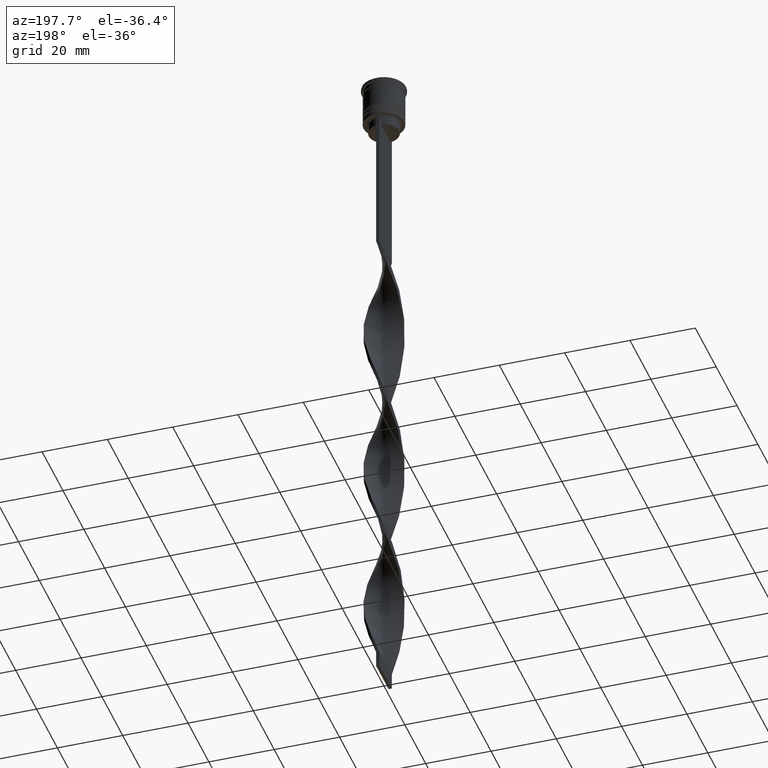
[diagram: clean part render]
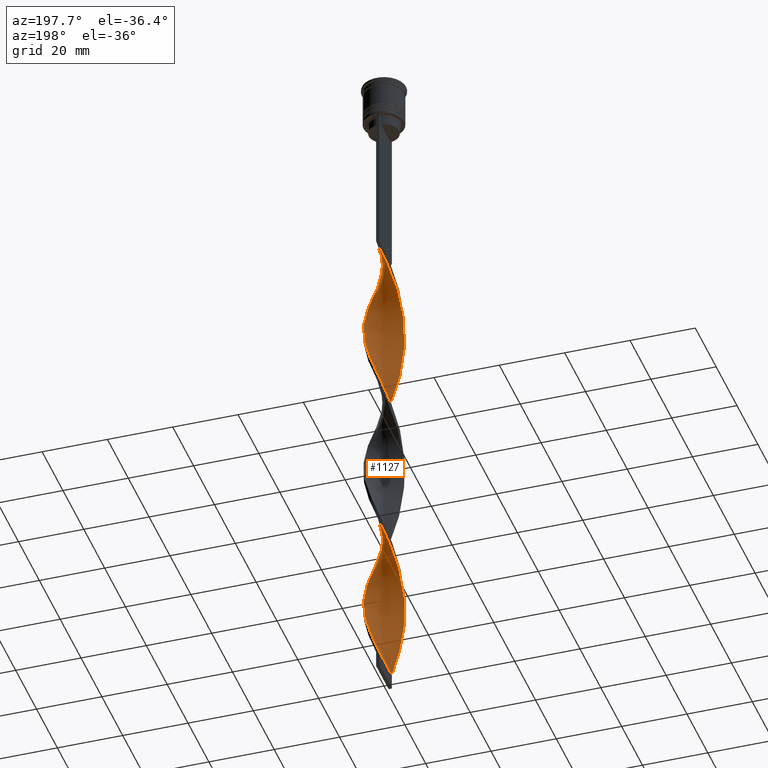
[diagram: same view with one face highlighted and labeled with its STEP entity id]
A machine part, auxiliary view. The second image highlights one B-rep face of the part: STEP entity #1127.
In plain terms, the highlighted face is a freeform B-spline surface patch.
Its self-contained STEP definition (entity closure, byte-faithful):
#15 = CARTESIAN_POINT ( 'NONE',  ( 0.6110105570574709821, 5.989713357011695827, -204.5784313725490335 ) ) ;
#19 = EDGE_CURVE ( 'NONE', #1454, #689, #756, .T. ) ;
#31 = CARTESIAN_POINT ( 'NONE',  ( 3.583701545128941124, -4.838086732939006041, -166.5980392156862706 ) ) ;
#36 = CARTESIAN_POINT ( 'NONE',  ( -6.020539237501857599, 0.05574306863229388370, -131.5392156862745310 ) ) ;
#38 = CARTESIAN_POINT ( 'NONE',  ( -6.025704593494047856, 0.5021420494578378024, -83.33333333333332860 ) ) ;
#39 = CARTESIAN_POINT ( 'NONE',  ( 0.5000000000000002220, 6.000000000000000888, -58.50000000000000000 ) ) ;
#52 = CARTESIAN_POINT ( 'NONE',  ( 5.830837162583066835, 1.600812440396822023, -185.5882352941176237 ) ) ;
#59 = CARTESIAN_POINT ( 'NONE',  ( -1.055981877452179196, 5.953668176878984752, -109.6274509803921404 ) ) ;
#61 = CARTESIAN_POINT ( 'NONE',  ( 2.633686111825096710, 5.414212543332559413, -151.9901960784313530 ) ) ;
#74 = CARTESIAN_POINT ( 'NONE',  ( -3.135386787619624194, 5.170165585153850607, -115.4705882352941018 ) ) ;
#76 = CARTESIAN_POINT ( 'NONE',  ( -1.701213882420739676, 5.775454209519711668, -163.6764705882352757 ) ) ;
#91 = CARTESIAN_POINT ( 'NONE',  ( 4.858813575065529022, 3.599054477032530563, -92.09803921568628482 ) ) ;
#93 = CARTESIAN_POINT ( 'NONE',  ( -5.907785354072956352, -1.161065118846087874, -87.71568627450979250 ) ) ;
#116 = CARTESIAN_POINT ( 'NONE',  ( 5.437407565418680200, 2.644969083640992036, -89.17647058823528994 ) ) ;
#133 = CARTESIAN_POINT ( 'NONE',  ( 4.032016302638260719, -4.506007880724164139, -168.0588235294117680 ) ) ;
#156 = CARTESIAN_POINT ( 'NONE',  ( 5.593848926018644363, 2.226848488981700402, -140.3039215686274588 ) ) ;
#167 = CARTESIAN_POINT ( 'NONE',  ( -2.131985436030568781, -5.658259501511266443, -203.1176470588235361 ) ) ;
#181 = CARTESIAN_POINT ( 'NONE',  ( 5.387501025401045140, 2.745194926993649087, -141.7647058823529562 ) ) ;
#190 = CARTESIAN_POINT ( 'NONE',  ( -3.583701545128942456, -4.838086732939007817, -198.7352941176470722 ) ) ;
#198 = CARTESIAN_POINT ( 'NONE',  ( 5.089420681871067664, 3.216799204635417464, -143.2254901960784537 ) ) ;
#206 = CARTESIAN_POINT ( 'NONE',  ( 5.830837162583066835, 1.600812440396822023, -86.25490196078432348 ) ) ;
#217 = CARTESIAN_POINT ( 'NONE',  ( 3.135386787619624638, 5.170165585153852383, -150.5294117647058840 ) ) ;
#224 = CARTESIAN_POINT ( 'NONE',  ( 0.6110105570574709821, 5.989713357011695827, -105.2450980392156765 ) ) ;
#238 = CARTESIAN_POINT ( 'NONE',  ( 4.486786045491808927, 4.014816431915656736, -192.8921568627450824 ) ) ;
#245 = CARTESIAN_POINT ( 'NONE',  ( 5.634122364000871741, 2.122890762018907029, -87.71568627450979250 ) ) ;
#246 = CARTESIAN_POINT ( 'NONE',  ( -0.4999999999999994449, 5.999999999999999112, -207.5000000000000000 ) ) ;
#252 = CARTESIAN_POINT ( 'NONE',  ( -4.858813575065530799, 3.599054477032530563, -74.56862745098038658 ) ) ;
#254 = CARTESIAN_POINT ( 'NONE',  ( 4.114758515918087056, 4.430578386798786461, -194.3529411764705799 ) ) ;
#261 = CARTESIAN_POINT ( 'NONE',  ( 2.236388528178716584, 5.617813528137046042, -200.1960784313725981 ) ) ;
#268 = CARTESIAN_POINT ( 'NONE',  ( -2.633686111825095821, -5.414212543332559413, -201.6568627450980387 ) ) ;
#276 = CARTESIAN_POINT ( 'NONE',  ( -3.672669403269011923, -4.770901325147233862, -146.1470588235294201 ) ) ;
#301 = CARTESIAN_POINT ( 'NONE',  ( 1.166039236662764322, 5.933094890902375518, -203.1176470588235361 ) ) ;
#310 = CARTESIAN_POINT ( 'NONE',  ( 0.05598187745217741290, 6.046331823121016136, -206.0392156862745026 ) ) ;
#316 = CARTESIAN_POINT ( 'NONE',  ( -1.166039236662764988, -5.933094890902374630, -153.4509803921568789 ) ) ;
#322 = CARTESIAN_POINT ( 'NONE',  ( 4.032016302638260719, -4.506007880724164139, -68.72549019607842524 ) ) ;
#324 = CARTESIAN_POINT ( 'NONE',  ( 4.791340338341086635, 3.688403482277191614, -144.6862745098039227 ) ) ;
#331 = CARTESIAN_POINT ( 'NONE',  ( 2.131985436030567005, -5.658259501511264666, -162.2156862745098351 ) ) ;
#336 = CARTESIAN_POINT ( 'NONE',  ( 4.486786045491808927, 4.014816431915656736, -93.55882352941176805 ) ) ;
#338 = CARTESIAN_POINT ( 'NONE',  ( 6.025704593494047856, -0.5021420494578385796, -133.0000000000000000 ) ) ;
#359 = CARTESIAN_POINT ( 'NONE',  ( 1.701213882420739232, 5.775454209519709892, -102.3235294117646959 ) ) ;
#361 = CARTESIAN_POINT ( 'NONE',  ( -5.800196826636243586, -1.708502050969748609, -89.17647058823527573 ) ) ;
#366 = CARTESIAN_POINT ( 'NONE',  ( -1.166039236662763434, 5.933094890902378182, -62.88235294117647101 ) ) ;
#378 = CARTESIAN_POINT ( 'NONE',  ( -4.411678320489672345, 4.097205681500675212, -119.8529411764705799 ) ) ;
#380 = CARTESIAN_POINT ( 'NONE',  ( 6.015373881509670895, 0.6136281867224275821, -135.9215686274509665 ) ) ;
#385 = CARTESIAN_POINT ( 'NONE',  ( -3.672669403269013699, 4.770901325147233862, -70.18627450980390847 ) ) ;
#396 = CARTESIAN_POINT ( 'NONE',  ( 3.583701545128941124, -4.838086732939006041, -67.26470588235292780 ) ) ;
#418 = CARTESIAN_POINT ( 'NONE',  ( 5.593848926018642587, -2.226848488981698626, -175.3627450980391984 ) ) ;
#426 = CARTESIAN_POINT ( 'NONE',  ( -0.6110105570574712042, 5.989713357011696715, -61.42156862745097357 ) ) ;
#442 = CARTESIAN_POINT ( 'NONE',  ( -5.800196826636243586, -1.708502050969748609, -188.5098039215686185 ) ) ;
#449 = CARTESIAN_POINT ( 'NONE',  ( 0.05598187745217893252, -6.046331823121015248, -109.6274509803921546 ) ) ;
#459 = CARTESIAN_POINT ( 'NONE',  ( 5.800196826636243586, 1.708502050969746833, -138.8431372549019329 ) ) ;
#469 = CARTESIAN_POINT ( 'NONE',  ( 6.015373881509669118, -0.6136281867224262498, -80.41176470588234793 ) ) ;
#484 = CARTESIAN_POINT ( 'NONE',  ( 5.830837162583069500, -1.600812440396820246, -130.0784313725490335 ) ) ;
#494 = CARTESIAN_POINT ( 'NONE',  ( -6.025704593494047856, 0.5021420494578378024, -182.6666666666666572 ) ) ;
#495 = CARTESIAN_POINT ( 'NONE',  ( -0.5000000000000000000, 1.999999999999999112, -207.5000000000000000 ) ) ;
#502 = CARTESIAN_POINT ( 'NONE',  ( -1.701213882420739676, 5.775454209519711668, -163.6764705882352757 ) ) ;
#510 = CARTESIAN_POINT ( 'NONE',  ( 5.800196826636241809, -1.708502050969748609, -77.49019607843138147 ) ) ;
#519 = CARTESIAN_POINT ( 'NONE',  ( -6.015373881509671783, -0.6136281867224271380, -185.5882352941176237 ) ) ;
#526 = CARTESIAN_POINT ( 'NONE',  ( -1.055981877452178086, -5.953668176878989193, -206.0392156862745026 ) ) ;
#539 = CARTESIAN_POINT ( 'NONE',  ( 2.633686111825095377, -5.414212543332557637, -64.34313725490196134 ) ) ;
#552 = CARTESIAN_POINT ( 'NONE',  ( -2.633686111825096265, 5.414212543332556749, -114.0098039215686185 ) ) ;
#561 = CARTESIAN_POINT ( 'NONE',  ( 2.733484409399326687, 5.364518895816362765, -198.7352941176470722 ) ) ;
#569 = CARTESIAN_POINT ( 'NONE',  ( 4.486786045491808927, 4.014816431915656736, -192.8921568627450824 ) ) ;
#576 = CARTESIAN_POINT ( 'NONE',  ( -0.5000000000000009992, -6.000000000000000888, -207.5000000000000000 ) ) ;
#585 = CARTESIAN_POINT ( 'NONE',  ( 1.055981877452178530, -5.953668176878985641, -159.2941176470588118 ) ) ;
#608 = CARTESIAN_POINT ( 'NONE',  ( -5.148110570242102391, -3.122011780336762410, -140.3039215686274588 ) ) ;
#616 = CARTESIAN_POINT ( 'NONE',  ( 5.593848926018642587, -2.226848488981698626, -76.02941176470586981 ) ) ;
#617 = CARTESIAN_POINT ( 'NONE',  ( -5.634122364000873517, 2.122890762018907029, -78.95098039215686470 ) ) ;
#624 = CARTESIAN_POINT ( 'NONE',  ( -6.025704593494046080, -0.5021420494578363591, -133.0000000000000000 ) ) ;
#630 = CARTESIAN_POINT ( 'NONE',  ( 5.907785354072954576, -1.161065118846086541, -78.95098039215686470 ) ) ;
#632 = CARTESIAN_POINT ( 'NONE',  ( 3.672669403269013699, -4.770901325147233862, -119.8529411764705799 ) ) ;
#637 = CARTESIAN_POINT ( 'NONE',  ( -2.633686111825095821, -5.414212543332559413, -102.3235294117646959 ) ) ;
#640 = CARTESIAN_POINT ( 'NONE',  ( -5.387501025401043364, 2.745194926993649975, -124.2352941176470580 ) ) ;
#646 = CARTESIAN_POINT ( 'NONE',  ( -4.114758515918085280, -4.430578386798788237, -144.6862745098039227 ) ) ;
#648 = CARTESIAN_POINT ( 'NONE',  ( -0.05598187745217849537, 6.046331823121015248, -159.2941176470588118 ) ) ;
#657 = CARTESIAN_POINT ( 'NONE',  ( -2.733484409399328019, 5.364518895816364541, -67.26470588235292780 ) ) ;
#670 = CARTESIAN_POINT ( 'NONE',  ( -5.907785354072954576, 1.161065118846088762, -128.6176470588235361 ) ) ;
#672 = CARTESIAN_POINT ( 'NONE',  ( 3.230580290619939010, -5.111224263495682152, -118.3921568627451109 ) ) ;
#676 = EDGE_CURVE ( 'NONE', #783, #689, #3023, .T. ) ;
#678 = CARTESIAN_POINT ( 'NONE',  ( -1.593983656741373212, -5.805963839195126042, -105.2450980392156765 ) ) ;
#685 = CARTESIAN_POINT ( 'NONE',  ( -5.634122364000871741, -2.122890762018906141, -137.3823529411764639 ) ) ;
#687 = CARTESIAN_POINT ( 'NONE',  ( -6.015373881509670895, -0.6136281867224269160, -86.25490196078432348 ) ) ;
#689 = VERTEX_POINT ( 'NONE', #1162 ) ;
#702 = CARTESIAN_POINT ( 'NONE',  ( 5.089420681871065000, -3.216799204635418352, -172.4411764705882035 ) ) ;
#708 = CARTESIAN_POINT ( 'NONE',  ( -6.020539237501859375, -0.05574306863229388370, -84.79411764705882604 ) ) ;
#717 = VECTOR ( 'NONE', #3460, 1000.000000000000000 ) ;
#731 = CARTESIAN_POINT ( 'NONE',  ( -6.020539237501859375, -0.05574306863229388370, -184.1274509803921546 ) ) ;
#745 = CARTESIAN_POINT ( 'NONE',  ( 1.593983656741371657, 5.805963839195126930, -154.9117647058823479 ) ) ;
#753 = CARTESIAN_POINT ( 'NONE',  ( -4.858813575065530799, 3.599054477032530563, -173.9019607843137294 ) ) ;
#756 = B_SPLINE_CURVE_WITH_KNOTS ( 'NONE', 3,
 ( #860, #2900, #495, #246 ),
 .UNSPECIFIED., .F., .F.,
 ( 4, 4 ),
 ( 0.000000000000000000, 1.000000000000000000 ),
 .UNSPECIFIED. ) ;
#765 = CARTESIAN_POINT ( 'NONE',  ( 4.114758515918088833, -4.430578386798787349, -121.3137254901960773 ) ) ;
#774 = CARTESIAN_POINT ( 'NONE',  ( 5.148110570242104167, 3.122011780336760189, -90.63725490196078738 ) ) ;
#783 = VERTEX_POINT ( 'NONE', #3224 ) ;
#787 = CARTESIAN_POINT ( 'NONE',  ( 6.020539237501859375, 0.05574306863229182285, -134.4607843137254974 ) ) ;
#795 = CARTESIAN_POINT ( 'NONE',  ( 2.236388528178716584, 5.617813528137046042, -100.8627450980392126 ) ) ;
#805 = CARTESIAN_POINT ( 'NONE',  ( -2.236388528178716584, 5.617813528137047818, -65.80392156862747299 ) ) ;
#807 = CARTESIAN_POINT ( 'NONE',  ( 3.583701545128945121, 4.838086732939006041, -149.0686274509803866 ) ) ;
#814 = CARTESIAN_POINT ( 'NONE',  ( -4.791340338341087524, -3.688403482277189838, -194.3529411764705799 ) ) ;
#824 = CARTESIAN_POINT ( 'NONE',  ( 6.015373881509670007, -0.6136281867224262498, -179.7450980392157476 ) ) ;
#832 = CARTESIAN_POINT ( 'NONE',  ( 0.05598187745217741984, 6.046331823121015248, -106.7058823529412024 ) ) ;
#851 = CARTESIAN_POINT ( 'NONE',  ( 5.830837162583065947, 1.600812440396822023, -185.5882352941176237 ) ) ;
#859 = CARTESIAN_POINT ( 'NONE',  ( -2.236388528178714807, -5.617813528137046930, -150.5294117647058840 ) ) ;
#860 = CARTESIAN_POINT ( 'NONE',  ( -0.5000000000000009992, -6.000000000000000888, -207.5000000000000000 ) ) ;
#876 = CARTESIAN_POINT ( 'NONE',  ( -4.791340338341087524, 3.688403482277188061, -121.3137254901960631 ) ) ;
#883 = CARTESIAN_POINT ( 'NONE',  ( 0.5000000000000002220, 6.000000000000000888, -58.50000000000000000 ) ) ;
#885 = CARTESIAN_POINT ( 'NONE',  ( 4.858813575065529022, 3.599054477032530563, -191.4313725490196134 ) ) ;
#895 = CARTESIAN_POINT ( 'NONE',  ( 0.05598187745217741984, 6.046331823121015248, -206.0392156862745026 ) ) ;
#902 = CARTESIAN_POINT ( 'NONE',  ( 5.387501025401045140, 2.745194926993649087, -141.7647058823529562 ) ) ;
#906 = CARTESIAN_POINT ( 'NONE',  ( 5.928270878038555125, 1.051477244927328636, -184.1274509803921546 ) ) ;
#916 = CARTESIAN_POINT ( 'NONE',  ( 0.5000000000000002220, -5.999999999999999112, -157.8333333333333144 ) ) ;
#920 = CARTESIAN_POINT ( 'NONE',  ( -4.486786045491809816, -4.014816431915656736, -143.2254901960784537 ) ) ;
#922 = CARTESIAN_POINT ( 'NONE',  ( -5.089420681871066776, -3.216799204635418796, -93.55882352941176805 ) ) ;
#927 = CARTESIAN_POINT ( 'NONE',  ( -4.858813575065530799, 3.599054477032530563, -74.56862745098038658 ) ) ;
#931 = CARTESIAN_POINT ( 'NONE',  ( 5.593848926018642587, -2.226848488981698626, -175.3627450980391984 ) ) ;
#938 = CARTESIAN_POINT ( 'NONE',  ( -5.800196826636241809, 1.708502050969748165, -127.1568627450980244 ) ) ;
#940 = CARTESIAN_POINT ( 'NONE',  ( 2.131985436030568781, 5.658259501511265555, -153.4509803921568789 ) ) ;
#956 = CARTESIAN_POINT ( 'NONE',  ( 4.791340338341086635, -3.688403482277188949, -71.64705882352942012 ) ) ;
#958 = CARTESIAN_POINT ( 'NONE',  ( 1.701213882420741008, -5.775454209519712556, -114.0098039215686185 ) ) ;
#965 = CARTESIAN_POINT ( 'NONE',  ( -3.135386787619625970, -5.170165585153851495, -100.8627450980392126 ) ) ;
#977 = CARTESIAN_POINT ( 'NONE',  ( 3.672669403269014143, 4.770901325147232086, -96.48039215686274872 ) ) ;
#979 = CARTESIAN_POINT ( 'NONE',  ( -4.791340338341087524, -3.688403482277189838, -95.01960784313725128 ) ) ;
#994 = CARTESIAN_POINT ( 'NONE',  ( -0.05598187745217816924, -6.046331823121016136, -156.3725490196078454 ) ) ;
#1000 = CARTESIAN_POINT ( 'NONE',  ( -5.830837162583067723, 1.600812440396822023, -80.41176470588234793 ) ) ;
#1010 = CARTESIAN_POINT ( 'NONE',  ( 5.387501025401043364, -2.745194926993648199, -173.9019607843137294 ) ) ;
#1018 = CARTESIAN_POINT ( 'NONE',  ( -4.791340338341087524, -3.688403482277189838, -194.3529411764705799 ) ) ;
#1043 = CARTESIAN_POINT ( 'NONE',  ( 4.032016302638262495, 4.506007880724165027, -147.6078431372548891 ) ) ;
#1050 = ORIENTED_EDGE ( 'NONE', *, *, #2923, .F. ) ;
#1052 = CARTESIAN_POINT ( 'NONE',  ( -3.135386787619626414, -5.170165585153851495, -200.1960784313725981 ) ) ;
#1062 = CARTESIAN_POINT ( 'NONE',  ( -3.672669403269013699, 4.770901325147233862, -169.5196078431372371 ) ) ;
#1071 = CARTESIAN_POINT ( 'NONE',  ( 5.907785354072954576, -1.161065118846086541, -78.95098039215686470 ) ) ;
#1081 = CARTESIAN_POINT ( 'NONE',  ( 4.858813575065529911, -3.599054477032532340, -124.2352941176470580 ) ) ;
#1089 = CARTESIAN_POINT ( 'NONE',  ( 4.486786045491808927, 4.014816431915656736, -93.55882352941176805 ) ) ;
#1102 = CARTESIAN_POINT ( 'NONE',  ( 0.5000000000000002220, 6.000000000000000888, -157.8333333333333144 ) ) ;
#1111 = CARTESIAN_POINT ( 'NONE',  ( -1.055981877452178974, 5.953668176878985641, -109.6274509803921546 ) ) ;
#1127 = ADVANCED_FACE ( 'NONE', ( #2324 ), #3790, .T. ) ;
#1132 = CARTESIAN_POINT ( 'NONE',  ( 5.089420681871065000, -3.216799204635418352, -73.10784313725488914 ) ) ;
#1148 = CARTESIAN_POINT ( 'NONE',  ( 3.135386787619625082, -5.170165585153850607, -165.1372549019608016 ) ) ;
#1162 = CARTESIAN_POINT ( 'NONE',  ( -0.4999999999999994449, 5.999999999999999112, -207.5000000000000000 ) ) ;
#1169 = CARTESIAN_POINT ( 'NONE',  ( 0.5000000000000002220, -6.000000000000000000, -58.50000000000000000 ) ) ;
#1170 = CARTESIAN_POINT ( 'NONE',  ( 1.593983656741372767, -5.805963839195126042, -160.7549019607842808 ) ) ;
#1189 = CARTESIAN_POINT ( 'NONE',  ( 5.437407565418679312, 2.644969083640992036, -188.5098039215686185 ) ) ;
#1197 = CARTESIAN_POINT ( 'NONE',  ( 5.928270878038556901, -1.051477244927329080, -131.5392156862745310 ) ) ;
#1200 = CARTESIAN_POINT ( 'NONE',  ( -3.135386787619625970, -5.170165585153851495, -200.1960784313725696 ) ) ;
#1201 = CARTESIAN_POINT ( 'NONE',  ( 5.907785354072954576, -1.161065118846086541, -178.2843137254901933 ) ) ;
#1207 = CARTESIAN_POINT ( 'NONE',  ( -4.114758515918085280, -4.430578386798788237, -144.6862745098039227 ) ) ;
#1213 = CARTESIAN_POINT ( 'NONE',  ( 5.387501025401043364, -2.745194926993648199, -74.56862745098038658 ) ) ;
#1216 = CARTESIAN_POINT ( 'NONE',  ( 3.135386787619624638, 5.170165585153852383, -150.5294117647058840 ) ) ;
#1232 = CARTESIAN_POINT ( 'NONE',  ( 6.015373881509669118, -0.6136281867224262498, -179.7450980392157192 ) ) ;
#1237 = CARTESIAN_POINT ( 'NONE',  ( 5.634122364000871741, 2.122890762018907029, -87.71568627450979250 ) ) ;
#1239 = CARTESIAN_POINT ( 'NONE',  ( -5.593848926018644363, -2.226848488981698626, -90.63725490196078738 ) ) ;
#1253 = CARTESIAN_POINT ( 'NONE',  ( -4.858813575065529022, -3.599054477032529675, -141.7647058823529562 ) ) ;
#1255 = CARTESIAN_POINT ( 'NONE',  ( -2.236388528178716584, 5.617813528137047818, -165.1372549019608016 ) ) ;
#1269 = CARTESIAN_POINT ( 'NONE',  ( -4.032016302638258942, 4.506007880724164139, -118.3921568627451109 ) ) ;
#1271 = CARTESIAN_POINT ( 'NONE',  ( -4.032016302638262495, -4.506007880724165027, -97.94117647058824616 ) ) ;
#1278 = CARTESIAN_POINT ( 'NONE',  ( -2.236388528178716140, 5.617813528137047818, -65.80392156862745878 ) ) ;
#1292 = CARTESIAN_POINT ( 'NONE',  ( -0.4999999999999994449, 5.999999999999999112, -108.1666666666666572 ) ) ;
#1301 = CARTESIAN_POINT ( 'NONE',  ( -6.015373881509671783, -0.6136281867224271380, -86.25490196078432348 ) ) ;
#1310 = CARTESIAN_POINT ( 'NONE',  ( 1.055981877452178752, -5.953668176878984752, -159.2941176470588118 ) ) ;
#1313 = ORIENTED_EDGE ( 'NONE', *, *, #1558, .F. ) ;
#1318 = CARTESIAN_POINT ( 'NONE',  ( -5.387501025401045140, -2.745194926993649975, -191.4313725490196134 ) ) ;
#1332 = CARTESIAN_POINT ( 'NONE',  ( -3.583701545128942456, -4.838086732939007817, -198.7352941176470722 ) ) ;
#1348 = CARTESIAN_POINT ( 'NONE',  ( 2.131985436030567005, -5.658259501511264666, -62.88235294117647811 ) ) ;
#1360 = CARTESIAN_POINT ( 'NONE',  ( 2.131985436030569225, 5.658259501511266443, -153.4509803921568789 ) ) ;
#1369 = CARTESIAN_POINT ( 'NONE',  ( 4.411678320489672345, -4.097205681500675212, -70.18627450980390847 ) ) ;
#1378 = CARTESIAN_POINT ( 'NONE',  ( 2.633686111825096710, 5.414212543332559413, -151.9901960784313530 ) ) ;
#1388 = CARTESIAN_POINT ( 'NONE',  ( 1.593983656741372767, -5.805963839195126042, -61.42156862745097357 ) ) ;
#1398 = CARTESIAN_POINT ( 'NONE',  ( -0.5000000000000009992, -6.000000000000000888, -108.1666666666666572 ) ) ;
#1407 = CARTESIAN_POINT ( 'NONE',  ( 2.733484409399326687, 5.364518895816362765, -99.40196078431372939 ) ) ;
#1418 = CARTESIAN_POINT ( 'NONE',  ( 1.055981877452178752, -5.953668176878984752, -59.96078431372549034 ) ) ;
#1429 = CARTESIAN_POINT ( 'NONE',  ( -4.486786045491809816, 4.014816431915658512, -172.4411764705882035 ) ) ;
#1436 = CARTESIAN_POINT ( 'NONE',  ( -5.148110570242105943, 3.122011780336761522, -76.02941176470586981 ) ) ;
#1438 = CARTESIAN_POINT ( 'NONE',  ( 5.800196826636241809, -1.708502050969748609, -176.8235294117647243 ) ) ;
#1445 = CARTESIAN_POINT ( 'NONE',  ( 5.928270878038555125, 1.051477244927328636, -184.1274509803921546 ) ) ;
#1452 = CARTESIAN_POINT ( 'NONE',  ( -1.593983656741373212, -5.805963839195126042, -204.5784313725490335 ) ) ;
#1454 = VERTEX_POINT ( 'NONE', #2664 ) ;
#1461 = CARTESIAN_POINT ( 'NONE',  ( 5.634122364000871741, 2.122890762018907029, -187.0490196078431211 ) ) ;
#1486 = CARTESIAN_POINT ( 'NONE',  ( 2.633686111825095377, -5.414212543332557637, -163.6764705882352757 ) ) ;
#1495 = CARTESIAN_POINT ( 'NONE',  ( -1.166039236662763434, 5.933094890902377294, -62.88235294117647811 ) ) ;
#1497 = CARTESIAN_POINT ( 'NONE',  ( 5.148110570242104167, 3.122011780336760189, -189.9705882352941160 ) ) ;
#1503 = CARTESIAN_POINT ( 'NONE',  ( -5.800196826636241809, 1.708502050969748165, -127.1568627450980102 ) ) ;
#1510 = CARTESIAN_POINT ( 'NONE',  ( 4.114758515918087056, 4.430578386798786461, -95.01960784313726549 ) ) ;
#1512 = CARTESIAN_POINT ( 'NONE',  ( 3.583701545128945121, 4.838086732939006041, -149.0686274509803866 ) ) ;
#1521 = CARTESIAN_POINT ( 'NONE',  ( 6.020539237501857599, -0.05574306863229464004, -181.2058823529411598 ) ) ;
#1526 = CARTESIAN_POINT ( 'NONE',  ( 0.6110105570574709821, 5.989713357011695827, -105.2450980392156765 ) ) ;
#1529 = CARTESIAN_POINT ( 'NONE',  ( 4.032016302638263383, 4.506007880724165027, -147.6078431372548891 ) ) ;
#1540 = CARTESIAN_POINT ( 'NONE',  ( -5.089420681871066776, -3.216799204635418796, -93.55882352941176805 ) ) ;
#1549 = CARTESIAN_POINT ( 'NONE',  ( -4.791340338341087524, 3.688403482277188061, -121.3137254901960773 ) ) ;
#1551 = CARTESIAN_POINT ( 'NONE',  ( 4.411678320489673233, 4.097205681500676988, -146.1470588235294201 ) ) ;
#1557 = CARTESIAN_POINT ( 'NONE',  ( -5.907785354072956352, -1.161065118846087874, -87.71568627450979250 ) ) ;
#1558 = EDGE_CURVE ( 'NONE', #1812, #1454, #1563, .T. ) ;
#1563 =( BOUNDED_CURVE ( )  B_SPLINE_CURVE ( 2, ( #3300, #2429, #426, #366, #1614, #1278, #657, #1877, #385, #2125, #3324, #927, #3574, #3643, #2469, #1000, #2777, #3284, #708, #1301, #1557, #3339, #2487, #2739, #1540, #1572, #2722, #3606, #3628, #965, #637, #2194, #678, #3393, #1398, #3702, #3376, #2853, #3432, #1651, #2230, #2580, #2830, #765, #1965, #1081, #3114, #3134, #3155, #484, #1712, #2004, #787, #3683, #3410, #459, #156, #181, #198, #1931, #1676, #1043, #807, #217, #1378, #1360, #745, #1947, #1102, #2561, #3740, #2287, #502, #2543, #3453, #3658, #1062, #2248, #3171, #2811, #3098, #2871, #2523, #1694, #3718, #2266, #731, #519, #1987, #442, #2887, #1318, #2503, #1018, #2211, #1633, #1332, #1200, #268, #2618, #1452, #1815, #576 ),
 .UNSPECIFIED., .F., .T. ) 
 B_SPLINE_CURVE_WITH_KNOTS ( ( 3, 2, 2, 2, 2, 2, 2, 2, 2, 2, 2, 2, 2, 2, 2, 2, 2, 2, 2, 2, 2, 2, 2, 2, 2, 2, 2, 2, 2, 2, 2, 2, 2, 2, 2, 2, 2, 2, 2, 2, 2, 2, 2, 2, 2, 2, 2, 2, 2, 2, 2, 3 ),
 ( 0.000000000000000000, 0.01470588235294117453, 0.02941176470588234906, 0.04411764705882353227, 0.05882352941176469813, 0.07352941176470588480, 0.08823529411764706454, 0.1029411764705882443, 0.1176470588235293963, 0.1323529411764705899, 0.1470588235294117696, 0.1617647058823529493, 0.1764705882352941291, 0.1911764705882352811, 0.2058823529411764885, 0.2205882352941176405, 0.2352941176470587925, 0.2500000000000000000, 0.2647058823529411797, 0.2794117647058823595, 0.2941176470588235392, 0.3088235294117647189, 0.3235294117647058987, 0.3382352941176470229, 0.3529411764705882582, 0.3676470588235294379, 0.3823529411764705621, 0.3970588235294117418, 0.4117647058823529771, 0.4264705882352941013, 0.4411764705882352811, 0.4558823529411764608, 0.4705882352941175850, 0.4852941176470588203, 0.5000000000000000000, 0.5147058823529411242, 0.5294117647058823595, 0.5441176470588234837, 0.5588235294117647189, 0.5735294117647058432, 0.5882352941176470784, 0.6029411764705882026, 0.6176470588235294379, 0.6323529411764705621, 0.6470588235294117974, 0.6617647058823529216, 0.6764705882352940458, 0.6911764705882351700, 0.7058823529411765163, 0.7205882352941176405, 0.7352941176470588758, 0.7500000000000000000 ),
 .UNSPECIFIED. ) 
 CURVE ( )  GEOMETRIC_REPRESENTATION_ITEM ( )  RATIONAL_B_SPLINE_CURVE ( ( 1.000000000000000000, 0.9957341762950344677, 1.000000000000000000, 0.9957341762950344677, 1.000000000000000000, 0.9957341762950344677, 1.000000000000000000, 0.9957341762950344677, 1.000000000000000000, 0.9957341762950344677, 1.000000000000000000, 0.9957341762950344677, 1.000000000000000000, 0.9957341762950344677, 1.000000000000000000, 0.9957341762950344677, 1.000000000000000000, 0.9957341762950344677, 1.000000000000000000, 0.9957341762950344677, 1.000000000000000000, 0.9957341762950344677, 1.000000000000000000, 0.9957341762950344677, 1.000000000000000000, 0.9957341762950344677, 1.000000000000000000, 0.9957341762950344677, 1.000000000000000000, 0.9957341762950344677, 1.000000000000000000, 0.9957341762950344677, 1.000000000000000000, 0.9957341762950344677, 1.000000000000000000, 0.9957341762950344677, 1.000000000000000000, 0.9957341762950344677, 1.000000000000000000, 0.9957341762950344677, 1.000000000000000000, 0.9957341762950344677, 1.000000000000000000, 0.9957341762950344677, 1.000000000000000000, 0.9957341762950344677, 1.000000000000000000, 0.9957341762950344677, 1.000000000000000000, 0.9957341762950344677, 1.000000000000000000, 0.9957341762950344677, 1.000000000000000000, 0.9957341762950344677, 1.000000000000000000, 0.9957341762950344677, 1.000000000000000000, 0.9957341762950344677, 1.000000000000000000, 0.9957341762950344677, 1.000000000000000000, 0.9957341762950344677, 1.000000000000000000, 0.9957341762950344677, 1.000000000000000000, 0.9957341762950344677, 1.000000000000000000, 0.9957341762950344677, 1.000000000000000000, 0.9957341762950344677, 1.000000000000000000, 0.9957341762950344677, 1.000000000000000000, 0.9957341762950344677, 1.000000000000000000, 0.9957341762950344677, 1.000000000000000000, 0.9957341762950344677, 1.000000000000000000, 0.9957341762950344677, 1.000000000000000000, 0.9957341762950344677, 1.000000000000000000, 0.9957341762950344677, 1.000000000000000000, 0.9957341762950344677, 1.000000000000000000, 0.9957341762950344677, 1.000000000000000000, 0.9957341762950344677, 1.000000000000000000, 0.9957341762950344677, 1.000000000000000000, 0.9957341762950344677, 1.000000000000000000, 0.9957341762950344677, 1.000000000000000000, 0.9957341762950344677, 1.000000000000000000, 0.9957341762950344677, 1.000000000000000000, 0.9957341762950344677, 1.000000000000000000 ) ) 
 REPRESENTATION_ITEM ( '' )  );
#1566 = CARTESIAN_POINT ( 'NONE',  ( -6.025704593494046080, -0.5021420494578363591, -133.0000000000000000 ) ) ;
#1567 = CARTESIAN_POINT ( 'NONE',  ( 1.055981877452178752, 5.953668176878989193, -156.3725490196078454 ) ) ;
#1572 = CARTESIAN_POINT ( 'NONE',  ( -4.791340338341087524, -3.688403482277189838, -95.01960784313726549 ) ) ;
#1583 = CARTESIAN_POINT ( 'NONE',  ( -1.701213882420739676, -5.775454209519709892, -151.9901960784313530 ) ) ;
#1606 = CARTESIAN_POINT ( 'NONE',  ( 4.411678320489672345, -4.097205681500675212, -169.5196078431372371 ) ) ;
#1614 = CARTESIAN_POINT ( 'NONE',  ( -1.701213882420739676, 5.775454209519711668, -64.34313725490196134 ) ) ;
#1633 = CARTESIAN_POINT ( 'NONE',  ( -4.032016302638261607, -4.506007880724165027, -197.2745098039215463 ) ) ;
#1642 = CARTESIAN_POINT ( 'NONE',  ( 6.020539237501859375, 0.05574306863229182285, -134.4607843137254974 ) ) ;
#1651 = CARTESIAN_POINT ( 'NONE',  ( 2.236388528178715696, -5.617813528137047818, -115.4705882352941018 ) ) ;
#1667 = CARTESIAN_POINT ( 'NONE',  ( 6.020539237501857599, -0.05574306863229464004, -81.87254901960783116 ) ) ;
#1672 = ORIENTED_EDGE ( 'NONE', *, *, #676, .T. ) ;
#1676 = CARTESIAN_POINT ( 'NONE',  ( 4.411678320489673233, 4.097205681500676988, -146.1470588235294201 ) ) ;
#1685 = CARTESIAN_POINT ( 'NONE',  ( -5.907785354072956352, -1.161065118846087874, -187.0490196078431211 ) ) ;
#1694 = CARTESIAN_POINT ( 'NONE',  ( -5.830837162583067723, 1.600812440396822023, -179.7450980392157476 ) ) ;
#1701 = CARTESIAN_POINT ( 'NONE',  ( 4.858813575065529022, 3.599054477032530563, -92.09803921568628482 ) ) ;
#1712 = CARTESIAN_POINT ( 'NONE',  ( 5.928270878038556901, -1.051477244927329080, -131.5392156862745310 ) ) ;
#1720 = CARTESIAN_POINT ( 'NONE',  ( -2.633686111825095821, -5.414212543332559413, -201.6568627450980387 ) ) ;
#1735 = CARTESIAN_POINT ( 'NONE',  ( 5.437407565418680200, 2.644969083640992036, -188.5098039215686185 ) ) ;
#1741 = CARTESIAN_POINT ( 'NONE',  ( -5.089420681871066776, -3.216799204635418796, -192.8921568627450824 ) ) ;
#1763 = CARTESIAN_POINT ( 'NONE',  ( -6.015373881509669118, 0.6136281867224241404, -130.0784313725490335 ) ) ;
#1781 = CARTESIAN_POINT ( 'NONE',  ( -1.701213882420739676, -5.775454209519709892, -151.9901960784313530 ) ) ;
#1806 = CARTESIAN_POINT ( 'NONE',  ( -5.830837162583066835, -1.600812440396822689, -135.9215686274509665 ) ) ;
#1812 = VERTEX_POINT ( 'NONE', #39 ) ;
#1813 = CARTESIAN_POINT ( 'NONE',  ( 2.236388528178716140, 5.617813528137045154, -100.8627450980392126 ) ) ;
#1814 = CARTESIAN_POINT ( 'NONE',  ( 1.166039236662763434, -5.933094890902377294, -112.5490196078431495 ) ) ;
#1815 = CARTESIAN_POINT ( 'NONE',  ( -1.055981877452178308, -5.953668176878988305, -206.0392156862745026 ) ) ;
#1822 = CARTESIAN_POINT ( 'NONE',  ( 5.800196826636241809, -1.708502050969748609, -176.8235294117647243 ) ) ;
#1829 = CARTESIAN_POINT ( 'NONE',  ( 3.230580290619939454, 5.111224263495680376, -97.94117647058824616 ) ) ;
#1831 = CARTESIAN_POINT ( 'NONE',  ( 5.148110570242106832, -3.122011780336759745, -125.6960784313725412 ) ) ;
#1845 = CARTESIAN_POINT ( 'NONE',  ( -3.230580290619940342, -5.111224263495679487, -147.6078431372548891 ) ) ;
#1848 = CARTESIAN_POINT ( 'NONE',  ( -1.166039236662763434, 5.933094890902377294, -162.2156862745098351 ) ) ;
#1868 = CARTESIAN_POINT ( 'NONE',  ( -6.015373881509670007, 0.6136281867224241404, -130.0784313725490335 ) ) ;
#1870 = CARTESIAN_POINT ( 'NONE',  ( -4.114758515918087944, 4.430578386798787349, -170.9803921568627629 ) ) ;
#1877 = CARTESIAN_POINT ( 'NONE',  ( -3.230580290619940786, 5.111224263495681264, -68.72549019607842524 ) ) ;
#1887 = CARTESIAN_POINT ( 'NONE',  ( -3.672669403269011923, -4.770901325147233862, -146.1470588235294201 ) ) ;
#1902 = CARTESIAN_POINT ( 'NONE',  ( 1.593983656741372767, -5.805963839195126042, -160.7549019607842808 ) ) ;
#1931 = CARTESIAN_POINT ( 'NONE',  ( 4.791340338341086635, 3.688403482277191614, -144.6862745098039227 ) ) ;
#1938 = CARTESIAN_POINT ( 'NONE',  ( 5.634122364000873517, -2.122890762018908362, -128.6176470588235361 ) ) ;
#1947 = CARTESIAN_POINT ( 'NONE',  ( 1.055981877452178974, 5.953668176878988305, -156.3725490196078454 ) ) ;
#1955 = CARTESIAN_POINT ( 'NONE',  ( 4.032016302638261607, -4.506007880724164139, -68.72549019607842524 ) ) ;
#1965 = CARTESIAN_POINT ( 'NONE',  ( 4.486786045491808927, -4.014816431915659400, -122.7745098039215605 ) ) ;
#1977 = CARTESIAN_POINT ( 'NONE',  ( -5.593848926018644363, -2.226848488981698626, -189.9705882352941160 ) ) ;
#1987 = CARTESIAN_POINT ( 'NONE',  ( -5.907785354072956352, -1.161065118846087874, -187.0490196078431211 ) ) ;
#1996 = CARTESIAN_POINT ( 'NONE',  ( -5.634122364000873517, 2.122890762018907029, -178.2843137254901933 ) ) ;
#2004 = CARTESIAN_POINT ( 'NONE',  ( 6.025704593494047856, -0.5021420494578385796, -133.0000000000000000 ) ) ;
#2011 = CARTESIAN_POINT ( 'NONE',  ( -5.148110570242105943, 3.122011780336761522, -175.3627450980391984 ) ) ;
#2017 = CARTESIAN_POINT ( 'NONE',  ( 2.131985436030567005, -5.658259501511265555, -62.88235294117647101 ) ) ;
#2030 = CARTESIAN_POINT ( 'NONE',  ( 3.135386787619625082, -5.170165585153850607, -65.80392156862747299 ) ) ;
#2056 = CARTESIAN_POINT ( 'NONE',  ( -0.6110105570574692058, -5.989713357011694939, -154.9117647058823479 ) ) ;
#2074 = CARTESIAN_POINT ( 'NONE',  ( -5.089420681871064112, 3.216799204635418796, -122.7745098039215605 ) ) ;
#2094 = CARTESIAN_POINT ( 'NONE',  ( -0.4999999999999994449, 5.999999999999999112, -207.5000000000000000 ) ) ;
#2106 = CARTESIAN_POINT ( 'NONE',  ( 4.858813575065529911, -3.599054477032532340, -124.2352941176470580 ) ) ;
#2114 = CARTESIAN_POINT ( 'NONE',  ( -4.411678320489672345, 4.097205681500675212, -119.8529411764705799 ) ) ;
#2119 = CARTESIAN_POINT ( 'NONE',  ( 0.05598187745217741290, 6.046331823121016136, -106.7058823529411882 ) ) ;
#2121 = CARTESIAN_POINT ( 'NONE',  ( -5.387501025401045140, -2.745194926993649975, -92.09803921568628482 ) ) ;
#2125 = CARTESIAN_POINT ( 'NONE',  ( -4.114758515918087944, 4.430578386798787349, -71.64705882352942012 ) ) ;
#2128 = CARTESIAN_POINT ( 'NONE',  ( 2.733484409399326687, 5.364518895816362765, -198.7352941176470722 ) ) ;
#2133 = CARTESIAN_POINT ( 'NONE',  ( -5.437407565418680200, -2.644969083640990259, -138.8431372549019329 ) ) ;
#2136 = CARTESIAN_POINT ( 'NONE',  ( 1.593983656741371657, 5.805963839195126930, -154.9117647058823479 ) ) ;
#2151 = CARTESIAN_POINT ( 'NONE',  ( 5.830837162583065947, 1.600812440396822023, -86.25490196078432348 ) ) ;
#2154 = CARTESIAN_POINT ( 'NONE',  ( -5.928270878038556013, 1.051477244927329524, -81.87254901960783116 ) ) ;
#2173 = CARTESIAN_POINT ( 'NONE',  ( -5.593848926018643475, 2.226848488981696850, -125.6960784313725412 ) ) ;
#2175 = CARTESIAN_POINT ( 'NONE',  ( 5.437407565418681088, -2.644969083640992924, -127.1568627450980102 ) ) ;
#2188 = CARTESIAN_POINT ( 'NONE',  ( 4.411678320489672345, -4.097205681500675212, -70.18627450980390847 ) ) ;
#2194 = CARTESIAN_POINT ( 'NONE',  ( -2.131985436030568781, -5.658259501511267331, -103.7843137254901791 ) ) ;
#2211 = CARTESIAN_POINT ( 'NONE',  ( -4.411678320489674121, -4.097205681500676100, -195.8137254901960773 ) ) ;
#2230 = CARTESIAN_POINT ( 'NONE',  ( 2.733484409399328463, -5.364518895816363653, -116.9313725490195992 ) ) ;
#2238 = CARTESIAN_POINT ( 'NONE',  ( -5.830837162583068611, 1.600812440396822023, -179.7450980392157192 ) ) ;
#2239 = ORIENTED_EDGE ( 'NONE', *, *, #19, .F. ) ;
#2248 = CARTESIAN_POINT ( 'NONE',  ( -4.114758515918087944, 4.430578386798787349, -170.9803921568627629 ) ) ;
#2256 = CARTESIAN_POINT ( 'NONE',  ( 6.025704593494046080, 0.5021420494578371363, -83.33333333333332860 ) ) ;
#2266 = CARTESIAN_POINT ( 'NONE',  ( -6.025704593494047856, 0.5021420494578378024, -182.6666666666666856 ) ) ;
#2278 = CARTESIAN_POINT ( 'NONE',  ( 4.114758515918087056, 4.430578386798786461, -95.01960784313725128 ) ) ;
#2286 = CARTESIAN_POINT ( 'NONE',  ( -2.733484409399328019, 5.364518895816364541, -67.26470588235292780 ) ) ;
#2287 = CARTESIAN_POINT ( 'NONE',  ( -1.166039236662763434, 5.933094890902378182, -162.2156862745098351 ) ) ;
#2296 = CARTESIAN_POINT ( 'NONE',  ( -1.593983656741371657, 5.805963839195126042, -111.0882352941176379 ) ) ;
#2305 = CARTESIAN_POINT ( 'NONE',  ( -4.486786045491809816, 4.014816431915658512, -73.10784313725488914 ) ) ;
#2314 = CARTESIAN_POINT ( 'NONE',  ( 4.791340338341086635, -3.688403482277188949, -71.64705882352943433 ) ) ;
#2324 = FACE_OUTER_BOUND ( 'NONE', #3042, .T. ) ;
#2337 = CARTESIAN_POINT ( 'NONE',  ( -3.230580290619940342, -5.111224263495679487, -147.6078431372548891 ) ) ;
#2360 = CARTESIAN_POINT ( 'NONE',  ( 4.791340338341086635, -3.688403482277188949, -170.9803921568627629 ) ) ;
#2374 = CARTESIAN_POINT ( 'NONE',  ( 0.6110105570574709821, 5.989713357011695827, -204.5784313725490335 ) ) ;
#2381 = CARTESIAN_POINT ( 'NONE',  ( 3.672669403269014143, 4.770901325147232086, -195.8137254901960773 ) ) ;
#2387 = CARTESIAN_POINT ( 'NONE',  ( 5.593848926018644363, 2.226848488981700402, -140.3039215686274588 ) ) ;
#2389 = CARTESIAN_POINT ( 'NONE',  ( 1.166039236662764322, 5.933094890902376406, -203.1176470588235361 ) ) ;
#2397 = CARTESIAN_POINT ( 'NONE',  ( -3.583701545128942012, 4.838086732939006041, -116.9313725490195992 ) ) ;
#2406 = CARTESIAN_POINT ( 'NONE',  ( 5.928270878038555125, 1.051477244927328636, -84.79411764705882604 ) ) ;
#2409 = CARTESIAN_POINT ( 'NONE',  ( 5.800196826636243586, 1.708502050969746833, -138.8431372549019045 ) ) ;
#2417 = CARTESIAN_POINT ( 'NONE',  ( -0.05598187745217816924, -6.046331823121015248, -156.3725490196078454 ) ) ;
#2421 = CARTESIAN_POINT ( 'NONE',  ( -2.633686111825096265, 5.414212543332556749, -114.0098039215686185 ) ) ;
#2423 = CARTESIAN_POINT ( 'NONE',  ( -1.055981877452178086, -5.953668176878989193, -106.7058823529412024 ) ) ;
#2429 = CARTESIAN_POINT ( 'NONE',  ( -0.05598187745217849537, 6.046331823121016136, -59.96078431372549034 ) ) ;
#2439 = CARTESIAN_POINT ( 'NONE',  ( -3.583701545128942012, 4.838086732939006041, -116.9313725490195992 ) ) ;
#2441 = CARTESIAN_POINT ( 'NONE',  ( -2.733484409399328019, 5.364518895816364541, -166.5980392156862706 ) ) ;
#2457 = CARTESIAN_POINT ( 'NONE',  ( 6.020539237501857599, -0.05574306863229464004, -81.87254901960783116 ) ) ;
#2460 = CARTESIAN_POINT ( 'NONE',  ( -3.583701545128942456, -4.838086732939007817, -99.40196078431372939 ) ) ;
#2469 = CARTESIAN_POINT ( 'NONE',  ( -5.634122364000873517, 2.122890762018907029, -78.95098039215686470 ) ) ;
#2478 = CARTESIAN_POINT ( 'NONE',  ( -1.593983656741371657, 5.805963839195126042, -111.0882352941176379 ) ) ;
#2487 = CARTESIAN_POINT ( 'NONE',  ( -5.593848926018644363, -2.226848488981698626, -90.63725490196078738 ) ) ;
#2496 = CARTESIAN_POINT ( 'NONE',  ( 3.583701545128941124, -4.838086732939006041, -166.5980392156862706 ) ) ;
#2503 = CARTESIAN_POINT ( 'NONE',  ( -5.089420681871066776, -3.216799204635418796, -192.8921568627450824 ) ) ;
#2523 = CARTESIAN_POINT ( 'NONE',  ( -5.634122364000873517, 2.122890762018907029, -178.2843137254901933 ) ) ;
#2536 = CARTESIAN_POINT ( 'NONE',  ( 5.593848926018642587, -2.226848488981698626, -76.02941176470586981 ) ) ;
#2543 = CARTESIAN_POINT ( 'NONE',  ( -2.236388528178716140, 5.617813528137047818, -165.1372549019608016 ) ) ;
#2552 = CARTESIAN_POINT ( 'NONE',  ( -0.5000000000000009992, -6.000000000000000888, -207.5000000000000000 ) ) ;
#2561 = CARTESIAN_POINT ( 'NONE',  ( -0.05598187745217849537, 6.046331823121016136, -159.2941176470588118 ) ) ;
#2569 = CARTESIAN_POINT ( 'NONE',  ( 5.437407565418679312, 2.644969083640992036, -89.17647058823527573 ) ) ;
#2580 = CARTESIAN_POINT ( 'NONE',  ( 3.230580290619939010, -5.111224263495682152, -118.3921568627451109 ) ) ;
#2594 = CARTESIAN_POINT ( 'NONE',  ( -4.411678320489674121, -4.097205681500676100, -195.8137254901960773 ) ) ;
#2599 = CARTESIAN_POINT ( 'NONE',  ( 1.593983656741372767, -5.805963839195126042, -61.42156862745097357 ) ) ;
#2601 = CARTESIAN_POINT ( 'NONE',  ( -0.05598187745217849537, 6.046331823121015248, -59.96078431372549744 ) ) ;
#2609 = CARTESIAN_POINT ( 'NONE',  ( 1.166039236662764322, 5.933094890902375518, -103.7843137254901933 ) ) ;
#2618 = CARTESIAN_POINT ( 'NONE',  ( -2.131985436030568781, -5.658259501511267331, -203.1176470588235361 ) ) ;
#2626 = CARTESIAN_POINT ( 'NONE',  ( -3.135386787619624194, 5.170165585153850607, -115.4705882352940876 ) ) ;
#2647 = CARTESIAN_POINT ( 'NONE',  ( 3.230580290619939454, 5.111224263495680376, -197.2745098039215463 ) ) ;
#2660 = CARTESIAN_POINT ( 'NONE',  ( 5.634122364000871741, 2.122890762018907029, -187.0490196078431211 ) ) ;
#2664 = CARTESIAN_POINT ( 'NONE',  ( -0.5000000000000009992, -6.000000000000000888, -207.5000000000000000 ) ) ;
#2668 = CARTESIAN_POINT ( 'NONE',  ( -5.907785354072954576, 1.161065118846088762, -128.6176470588235361 ) ) ;
#2678 = CARTESIAN_POINT ( 'NONE',  ( -1.701213882420739676, 5.775454209519711668, -64.34313725490196134 ) ) ;
#2680 = CARTESIAN_POINT ( 'NONE',  ( 3.230580290619939454, 5.111224263495680376, -197.2745098039215463 ) ) ;
#2686 = CARTESIAN_POINT ( 'NONE',  ( -4.486786045491809816, -4.014816431915656736, -143.2254901960784537 ) ) ;
#2692 = CARTESIAN_POINT ( 'NONE',  ( -5.387501025401043364, 2.745194926993649975, -124.2352941176470580 ) ) ;
#2694 = CARTESIAN_POINT ( 'NONE',  ( 0.6110105570574698719, -5.989713357011695827, -111.0882352941176379 ) ) ;
#2704 = CARTESIAN_POINT ( 'NONE',  ( 6.025704593494046080, 0.5021420494578371363, -182.6666666666666572 ) ) ;
#2712 = CARTESIAN_POINT ( 'NONE',  ( 5.800196826636241809, -1.708502050969748609, -77.49019607843136725 ) ) ;
#2716 = CARTESIAN_POINT ( 'NONE',  ( 2.733484409399328463, -5.364518895816363653, -116.9313725490195992 ) ) ;
#2722 = CARTESIAN_POINT ( 'NONE',  ( -4.411678320489674121, -4.097205681500676100, -96.48039215686274872 ) ) ;
#2732 = CARTESIAN_POINT ( 'NONE',  ( -2.236388528178714363, -5.617813528137046042, -150.5294117647058840 ) ) ;
#2734 = CARTESIAN_POINT ( 'NONE',  ( -0.6110105570574712042, 5.989713357011696715, -160.7549019607842808 ) ) ;
#2739 = CARTESIAN_POINT ( 'NONE',  ( -5.387501025401045140, -2.745194926993649975, -92.09803921568628482 ) ) ;
#2748 = CARTESIAN_POINT ( 'NONE',  ( -5.928270878038555125, -1.051477244927326860, -134.4607843137254974 ) ) ;
#2751 = CARTESIAN_POINT ( 'NONE',  ( 4.486786045491808927, -4.014816431915659400, -122.7745098039215605 ) ) ;
#2765 = CARTESIAN_POINT ( 'NONE',  ( 3.135386787619625082, -5.170165585153850607, -65.80392156862745878 ) ) ;
#2777 = CARTESIAN_POINT ( 'NONE',  ( -5.928270878038556013, 1.051477244927329524, -81.87254901960783116 ) ) ;
#2786 = CARTESIAN_POINT ( 'NONE',  ( 2.131985436030567005, -5.658259501511265555, -162.2156862745098351 ) ) ;
#2811 = CARTESIAN_POINT ( 'NONE',  ( -4.858813575065530799, 3.599054477032530563, -173.9019607843137294 ) ) ;
#2819 = CARTESIAN_POINT ( 'NONE',  ( 2.236388528178716140, -5.617813528137047818, -115.4705882352940876 ) ) ;
#2830 = CARTESIAN_POINT ( 'NONE',  ( 3.672669403269013699, -4.770901325147233862, -119.8529411764705799 ) ) ;
#2845 = CARTESIAN_POINT ( 'NONE',  ( -5.437407565418681088, 2.644969083640993368, -176.8235294117647243 ) ) ;
#2853 = CARTESIAN_POINT ( 'NONE',  ( 1.166039236662763434, -5.933094890902378182, -112.5490196078431495 ) ) ;
#2862 = CARTESIAN_POINT ( 'NONE',  ( -1.593983656741373212, -5.805963839195126042, -204.5784313725490335 ) ) ;
#2871 = CARTESIAN_POINT ( 'NONE',  ( -5.437407565418681088, 2.644969083640993368, -176.8235294117647243 ) ) ;
#2878 = CARTESIAN_POINT ( 'NONE',  ( 3.672669403269014143, 4.770901325147232086, -96.48039215686274872 ) ) ;
#2887 = CARTESIAN_POINT ( 'NONE',  ( -5.593848926018644363, -2.226848488981698626, -189.9705882352941160 ) ) ;
#2899 = CARTESIAN_POINT ( 'NONE',  ( 3.583701545128941124, -4.838086732939006041, -67.26470588235292780 ) ) ;
#2900 = CARTESIAN_POINT ( 'NONE',  ( -0.5000000000000004441, -2.000000000000000888, -207.5000000000000000 ) ) ;
#2905 = CARTESIAN_POINT ( 'NONE',  ( -3.230580290619940786, 5.111224263495681264, -68.72549019607842524 ) ) ;
#2908 = CARTESIAN_POINT ( 'NONE',  ( 1.701213882420739232, 5.775454209519709892, -201.6568627450980387 ) ) ;
#2914 = CARTESIAN_POINT ( 'NONE',  ( 5.387501025401043364, -2.745194926993648643, -173.9019607843137294 ) ) ;
#2923 = EDGE_CURVE ( 'NONE', #783, #1812, #3233, .T. ) ;
#2931 = CARTESIAN_POINT ( 'NONE',  ( 4.114758515918087056, 4.430578386798786461, -194.3529411764705799 ) ) ;
#2940 = CARTESIAN_POINT ( 'NONE',  ( 6.025704593494046080, 0.5021420494578371363, -182.6666666666666856 ) ) ;
#2951 = CARTESIAN_POINT ( 'NONE',  ( 4.411678320489672345, -4.097205681500675212, -169.5196078431372371 ) ) ;
#2964 = CARTESIAN_POINT ( 'NONE',  ( -0.6110105570574712042, 5.989713357011696715, -61.42156862745097357 ) ) ;
#2966 = CARTESIAN_POINT ( 'NONE',  ( 3.672669403269014143, 4.770901325147232086, -195.8137254901960773 ) ) ;
#2972 = CARTESIAN_POINT ( 'NONE',  ( -4.858813575065529022, -3.599054477032529675, -141.7647058823529562 ) ) ;
#2979 = CARTESIAN_POINT ( 'NONE',  ( 0.5000000000000002220, -5.999999999999999112, -157.8333333333333144 ) ) ;
#2981 = CARTESIAN_POINT ( 'NONE',  ( 5.089420681871067664, 3.216799204635417464, -143.2254901960784537 ) ) ;
#2988 = CARTESIAN_POINT ( 'NONE',  ( -5.634122364000871741, -2.122890762018906141, -137.3823529411764639 ) ) ;
#2994 = CARTESIAN_POINT ( 'NONE',  ( 5.089420681871065000, -3.216799204635418352, -73.10784313725488914 ) ) ;
#2996 = CARTESIAN_POINT ( 'NONE',  ( -2.633686111825095821, -5.414212543332559413, -102.3235294117646959 ) ) ;
#3020 = CARTESIAN_POINT ( 'NONE',  ( 1.166039236662764322, 5.933094890902376406, -103.7843137254901791 ) ) ;
#3023 =( BOUNDED_CURVE ( )  B_SPLINE_CURVE ( 2, ( #3264, #1418, #2599, #2017, #539, #2765, #396, #322, #2188, #956, #2994, #1213, #616, #2712, #630, #3583, #2457, #3293, #2406, #2151, #1237, #116, #3619, #91, #336, #1510, #977, #1829, #3038, #1813, #359, #3020, #1526, #2119, #1292, #59, #2478, #3315, #2421, #74, #2439, #1269, #378, #1549, #3278, #2692, #2173, #938, #670, #1868, #36, #1566, #2748, #3332, #685, #2133, #3567, #1253, #920, #646, #1887, #1845, #3055, #2732, #1583, #3599, #3635, #994, #2979, #1310, #1902, #2786, #3073, #3348, #2496, #133, #1606, #3651, #702, #1010, #418, #1438, #1201, #824, #3759, #2940, #906, #851, #2660, #1735, #1497, #885, #238, #254, #2966, #2680, #561, #3172, #2908, #2389, #2374, #310, #3208 ),
 .UNSPECIFIED., .F., .T. ) 
 B_SPLINE_CURVE_WITH_KNOTS ( ( 3, 2, 2, 2, 2, 2, 2, 2, 2, 2, 2, 2, 2, 2, 2, 2, 2, 2, 2, 2, 2, 2, 2, 2, 2, 2, 2, 2, 2, 2, 2, 2, 2, 2, 2, 2, 2, 2, 2, 2, 2, 2, 2, 2, 2, 2, 2, 2, 2, 2, 2, 3 ),
 ( 0.000000000000000000, 0.01470588235294117453, 0.02941176470588234906, 0.04411764705882353227, 0.05882352941176469813, 0.07352941176470588480, 0.08823529411764706454, 0.1029411764705882443, 0.1176470588235293963, 0.1323529411764705899, 0.1470588235294117696, 0.1617647058823529493, 0.1764705882352941291, 0.1911764705882352811, 0.2058823529411764885, 0.2205882352941176405, 0.2352941176470587925, 0.2500000000000000000, 0.2647058823529411797, 0.2794117647058823595, 0.2941176470588235392, 0.3088235294117647189, 0.3235294117647058987, 0.3382352941176470229, 0.3529411764705882582, 0.3676470588235294379, 0.3823529411764705621, 0.3970588235294117418, 0.4117647058823529771, 0.4264705882352941013, 0.4411764705882352811, 0.4558823529411764608, 0.4705882352941175850, 0.4852941176470588203, 0.5000000000000000000, 0.5147058823529411242, 0.5294117647058823595, 0.5441176470588234837, 0.5588235294117647189, 0.5735294117647058432, 0.5882352941176470784, 0.6029411764705882026, 0.6176470588235294379, 0.6323529411764705621, 0.6470588235294117974, 0.6617647058823529216, 0.6764705882352940458, 0.6911764705882351700, 0.7058823529411765163, 0.7205882352941176405, 0.7352941176470588758, 0.7500000000000000000 ),
 .UNSPECIFIED. ) 
 CURVE ( )  GEOMETRIC_REPRESENTATION_ITEM ( )  RATIONAL_B_SPLINE_CURVE ( ( 1.000000000000000000, 0.9957341762950344677, 1.000000000000000000, 0.9957341762950344677, 1.000000000000000000, 0.9957341762950344677, 1.000000000000000000, 0.9957341762950344677, 1.000000000000000000, 0.9957341762950344677, 1.000000000000000000, 0.9957341762950344677, 1.000000000000000000, 0.9957341762950344677, 1.000000000000000000, 0.9957341762950344677, 1.000000000000000000, 0.9957341762950344677, 1.000000000000000000, 0.9957341762950344677, 1.000000000000000000, 0.9957341762950344677, 1.000000000000000000, 0.9957341762950344677, 1.000000000000000000, 0.9957341762950344677, 1.000000000000000000, 0.9957341762950344677, 1.000000000000000000, 0.9957341762950344677, 1.000000000000000000, 0.9957341762950344677, 1.000000000000000000, 0.9957341762950344677, 1.000000000000000000, 0.9957341762950344677, 1.000000000000000000, 0.9957341762950344677, 1.000000000000000000, 0.9957341762950344677, 1.000000000000000000, 0.9957341762950344677, 1.000000000000000000, 0.9957341762950344677, 1.000000000000000000, 0.9957341762950344677, 1.000000000000000000, 0.9957341762950344677, 1.000000000000000000, 0.9957341762950344677, 1.000000000000000000, 0.9957341762950344677, 1.000000000000000000, 0.9957341762950344677, 1.000000000000000000, 0.9957341762950344677, 1.000000000000000000, 0.9957341762950344677, 1.000000000000000000, 0.9957341762950344677, 1.000000000000000000, 0.9957341762950344677, 1.000000000000000000, 0.9957341762950344677, 1.000000000000000000, 0.9957341762950344677, 1.000000000000000000, 0.9957341762950344677, 1.000000000000000000, 0.9957341762950344677, 1.000000000000000000, 0.9957341762950344677, 1.000000000000000000, 0.9957341762950344677, 1.000000000000000000, 0.9957341762950344677, 1.000000000000000000, 0.9957341762950344677, 1.000000000000000000, 0.9957341762950344677, 1.000000000000000000, 0.9957341762950344677, 1.000000000000000000, 0.9957341762950344677, 1.000000000000000000, 0.9957341762950344677, 1.000000000000000000, 0.9957341762950344677, 1.000000000000000000, 0.9957341762950344677, 1.000000000000000000, 0.9957341762950344677, 1.000000000000000000, 0.9957341762950344677, 1.000000000000000000, 0.9957341762950344677, 1.000000000000000000, 0.9957341762950344677, 1.000000000000000000, 0.9957341762950344677, 1.000000000000000000, 0.9957341762950344677, 1.000000000000000000 ) ) 
 REPRESENTATION_ITEM ( '' )  );
#3025 = CARTESIAN_POINT ( 'NONE',  ( -4.411678320489674121, -4.097205681500676100, -96.48039215686274872 ) ) ;
#3038 = CARTESIAN_POINT ( 'NONE',  ( 2.733484409399326687, 5.364518895816362765, -99.40196078431372939 ) ) ;
#3040 = CARTESIAN_POINT ( 'NONE',  ( -3.135386787619626414, -5.170165585153851495, -100.8627450980392126 ) ) ;
#3042 = EDGE_LOOP ( 'NONE', ( #1050, #1672, #2239, #1313 ) ) ;
#3055 = CARTESIAN_POINT ( 'NONE',  ( -2.733484409399329351, -5.364518895816360988, -149.0686274509803866 ) ) ;
#3073 = CARTESIAN_POINT ( 'NONE',  ( 2.633686111825095377, -5.414212543332557637, -163.6764705882352757 ) ) ;
#3098 = CARTESIAN_POINT ( 'NONE',  ( -5.148110570242105943, 3.122011780336761522, -175.3627450980391984 ) ) ;
#3104 = CARTESIAN_POINT ( 'NONE',  ( -5.830837162583068611, 1.600812440396822023, -80.41176470588234793 ) ) ;
#3114 = CARTESIAN_POINT ( 'NONE',  ( 5.148110570242106832, -3.122011780336759745, -125.6960784313725412 ) ) ;
#3122 = CARTESIAN_POINT ( 'NONE',  ( 5.387501025401043364, -2.745194926993648643, -74.56862745098038658 ) ) ;
#3134 = CARTESIAN_POINT ( 'NONE',  ( 5.437407565418681088, -2.644969083640992924, -127.1568627450980244 ) ) ;
#3147 = CARTESIAN_POINT ( 'NONE',  ( -5.387501025401045140, -2.745194926993649975, -191.4313725490196134 ) ) ;
#3155 = CARTESIAN_POINT ( 'NONE',  ( 5.634122364000873517, -2.122890762018908362, -128.6176470588235361 ) ) ;
#3164 = CARTESIAN_POINT ( 'NONE',  ( 1.701213882420739232, 5.775454209519709892, -102.3235294117646959 ) ) ;
#3171 = CARTESIAN_POINT ( 'NONE',  ( -4.486786045491809816, 4.014816431915658512, -172.4411764705882035 ) ) ;
#3172 = CARTESIAN_POINT ( 'NONE',  ( 2.236388528178716140, 5.617813528137045154, -200.1960784313725696 ) ) ;
#3178 = CARTESIAN_POINT ( 'NONE',  ( -5.800196826636243586, -1.708502050969748609, -188.5098039215686185 ) ) ;
#3199 = CARTESIAN_POINT ( 'NONE',  ( -2.131985436030567005, 5.658259501511264666, -112.5490196078431495 ) ) ;
#3208 = CARTESIAN_POINT ( 'NONE',  ( -0.4999999999999994449, 5.999999999999999112, -207.5000000000000000 ) ) ;
#3215 = CARTESIAN_POINT ( 'NONE',  ( 5.907785354072954576, -1.161065118846086541, -178.2843137254901933 ) ) ;
#3224 = CARTESIAN_POINT ( 'NONE',  ( 0.5000000000000002220, -5.999999999999999112, -58.50000000000000000 ) ) ;
#3233 = LINE ( 'NONE', #1169, #717 ) ;
#3234 = CARTESIAN_POINT ( 'NONE',  ( -4.032016302638259830, 4.506007880724164139, -118.3921568627451109 ) ) ;
#3255 = CARTESIAN_POINT ( 'NONE',  ( -5.437407565418680200, -2.644969083640990259, -138.8431372549019045 ) ) ;
#3264 = CARTESIAN_POINT ( 'NONE',  ( 0.5000000000000002220, -5.999999999999999112, -58.50000000000000000 ) ) ;
#3265 = CARTESIAN_POINT ( 'NONE',  ( 5.907785354072956352, 1.161065118846087207, -137.3823529411764639 ) ) ;
#3273 = CARTESIAN_POINT ( 'NONE',  ( 4.032016302638261607, -4.506007880724164139, -168.0588235294117680 ) ) ;
#3278 = CARTESIAN_POINT ( 'NONE',  ( -5.089420681871064112, 3.216799204635418796, -122.7745098039215605 ) ) ;
#3280 = CARTESIAN_POINT ( 'NONE',  ( -0.5000000000000009992, -6.000000000000000888, -108.1666666666666572 ) ) ;
#3284 = CARTESIAN_POINT ( 'NONE',  ( -6.025704593494047856, 0.5021420494578378024, -83.33333333333332860 ) ) ;
#3287 = CARTESIAN_POINT ( 'NONE',  ( 5.148110570242104167, 3.122011780336760189, -189.9705882352941160 ) ) ;
#3293 = CARTESIAN_POINT ( 'NONE',  ( 6.025704593494046080, 0.5021420494578371363, -83.33333333333332860 ) ) ;
#3295 = CARTESIAN_POINT ( 'NONE',  ( 0.5000000000000002220, 6.000000000000000888, -157.8333333333333144 ) ) ;
#3300 = CARTESIAN_POINT ( 'NONE',  ( 0.5000000000000002220, 6.000000000000000888, -58.50000000000000000 ) ) ;
#3315 = CARTESIAN_POINT ( 'NONE',  ( -2.131985436030567005, 5.658259501511265555, -112.5490196078431495 ) ) ;
#3319 = CARTESIAN_POINT ( 'NONE',  ( -3.672669403269013699, 4.770901325147233862, -169.5196078431372371 ) ) ;
#3324 = CARTESIAN_POINT ( 'NONE',  ( -4.486786045491809816, 4.014816431915658512, -73.10784313725488914 ) ) ;
#3332 = CARTESIAN_POINT ( 'NONE',  ( -5.830837162583065947, -1.600812440396822689, -135.9215686274509665 ) ) ;
#3334 = CARTESIAN_POINT ( 'NONE',  ( 4.114758515918088833, -4.430578386798787349, -121.3137254901960631 ) ) ;
#3339 = CARTESIAN_POINT ( 'NONE',  ( -5.800196826636243586, -1.708502050969748609, -89.17647058823528994 ) ) ;
#3348 = CARTESIAN_POINT ( 'NONE',  ( 3.135386787619625082, -5.170165585153850607, -165.1372549019608016 ) ) ;
#3376 = CARTESIAN_POINT ( 'NONE',  ( 0.6110105570574698719, -5.989713357011695827, -111.0882352941176379 ) ) ;
#3393 = CARTESIAN_POINT ( 'NONE',  ( -1.055981877452178308, -5.953668176878988305, -106.7058823529411882 ) ) ;
#3401 = CARTESIAN_POINT ( 'NONE',  ( -5.928270878038556013, 1.051477244927329524, -181.2058823529411598 ) ) ;
#3410 = CARTESIAN_POINT ( 'NONE',  ( 5.907785354072956352, 1.161065118846087207, -137.3823529411764639 ) ) ;
#3420 = CARTESIAN_POINT ( 'NONE',  ( 5.928270878038555125, 1.051477244927328636, -84.79411764705882604 ) ) ;
#3432 = CARTESIAN_POINT ( 'NONE',  ( 1.701213882420741008, -5.775454209519712556, -114.0098039215686185 ) ) ;
#3444 = CARTESIAN_POINT ( 'NONE',  ( 3.230580290619939454, 5.111224263495680376, -97.94117647058824616 ) ) ;
#3452 = CARTESIAN_POINT ( 'NONE',  ( -3.672669403269013699, 4.770901325147233862, -70.18627450980390847 ) ) ;
#3453 = CARTESIAN_POINT ( 'NONE',  ( -2.733484409399328019, 5.364518895816364541, -166.5980392156862706 ) ) ;
#3460 = DIRECTION ( 'NONE',  ( 0.000000000000000000, 1.000000000000000000, 0.000000000000000000 ) ) ;
#3461 = CARTESIAN_POINT ( 'NONE',  ( -6.015373881509670895, -0.6136281867224269160, -185.5882352941176237 ) ) ;
#3477 = CARTESIAN_POINT ( 'NONE',  ( 1.055981877452178530, -5.953668176878985641, -59.96078431372549744 ) ) ;
#3485 = CARTESIAN_POINT ( 'NONE',  ( -5.437407565418681088, 2.644969083640993368, -77.49019607843138147 ) ) ;
#3502 = CARTESIAN_POINT ( 'NONE',  ( 5.089420681871065000, -3.216799204635418352, -172.4411764705882035 ) ) ;
#3522 = CARTESIAN_POINT ( 'NONE',  ( 1.701213882420739232, 5.775454209519709892, -201.6568627450980387 ) ) ;
#3540 = CARTESIAN_POINT ( 'NONE',  ( -2.733484409399329351, -5.364518895816360988, -149.0686274509803866 ) ) ;
#3546 = CARTESIAN_POINT ( 'NONE',  ( -1.593983656741373212, -5.805963839195126042, -105.2450980392156765 ) ) ;
#3559 = CARTESIAN_POINT ( 'NONE',  ( -5.593848926018643475, 2.226848488981696850, -125.6960784313725412 ) ) ;
#3567 = CARTESIAN_POINT ( 'NONE',  ( -5.148110570242102391, -3.122011780336762410, -140.3039215686274588 ) ) ;
#3569 = CARTESIAN_POINT ( 'NONE',  ( -6.020539237501859375, -0.05574306863229388370, -84.79411764705882604 ) ) ;
#3574 = CARTESIAN_POINT ( 'NONE',  ( -5.148110570242105943, 3.122011780336761522, -76.02941176470586981 ) ) ;
#3577 = CARTESIAN_POINT ( 'NONE',  ( 4.858813575065529022, 3.599054477032530563, -191.4313725490196134 ) ) ;
#3583 = CARTESIAN_POINT ( 'NONE',  ( 6.015373881509670007, -0.6136281867224262498, -80.41176470588234793 ) ) ;
#3585 = CARTESIAN_POINT ( 'NONE',  ( 5.830837162583069500, -1.600812440396820246, -130.0784313725490335 ) ) ;
#3599 = CARTESIAN_POINT ( 'NONE',  ( -1.166039236662764988, -5.933094890902375518, -153.4509803921568789 ) ) ;
#3601 = CARTESIAN_POINT ( 'NONE',  ( -3.230580290619940786, 5.111224263495681264, -168.0588235294117680 ) ) ;
#3606 = CARTESIAN_POINT ( 'NONE',  ( -4.032016302638261607, -4.506007880724165027, -97.94117647058824616 ) ) ;
#3619 = CARTESIAN_POINT ( 'NONE',  ( 5.148110570242104167, 3.122011780336760189, -90.63725490196078738 ) ) ;
#3622 = CARTESIAN_POINT ( 'NONE',  ( -2.131985436030568781, -5.658259501511266443, -103.7843137254901933 ) ) ;
#3628 = CARTESIAN_POINT ( 'NONE',  ( -3.583701545128942456, -4.838086732939007817, -99.40196078431372939 ) ) ;
#3635 = CARTESIAN_POINT ( 'NONE',  ( -0.6110105570574692058, -5.989713357011694939, -154.9117647058823479 ) ) ;
#3643 = CARTESIAN_POINT ( 'NONE',  ( -5.437407565418681088, 2.644969083640993368, -77.49019607843136725 ) ) ;
#3651 = CARTESIAN_POINT ( 'NONE',  ( 4.791340338341086635, -3.688403482277188949, -170.9803921568627629 ) ) ;
#3658 = CARTESIAN_POINT ( 'NONE',  ( -3.230580290619940786, 5.111224263495681264, -168.0588235294117680 ) ) ;
#3683 = CARTESIAN_POINT ( 'NONE',  ( 6.015373881509671783, 0.6136281867224275821, -135.9215686274509665 ) ) ;
#3694 = CARTESIAN_POINT ( 'NONE',  ( -6.020539237501859375, -0.05574306863229388370, -184.1274509803921546 ) ) ;
#3702 = CARTESIAN_POINT ( 'NONE',  ( 0.05598187745217893252, -6.046331823121016136, -109.6274509803921404 ) ) ;
#3710 = CARTESIAN_POINT ( 'NONE',  ( 2.633686111825095377, -5.414212543332557637, -64.34313725490196134 ) ) ;
#3718 = CARTESIAN_POINT ( 'NONE',  ( -5.928270878038556013, 1.051477244927329524, -181.2058823529411598 ) ) ;
#3726 = CARTESIAN_POINT ( 'NONE',  ( -4.032016302638262495, -4.506007880724165027, -197.2745098039215463 ) ) ;
#3740 = CARTESIAN_POINT ( 'NONE',  ( -0.6110105570574712042, 5.989713357011696715, -160.7549019607842808 ) ) ;
#3750 = CARTESIAN_POINT ( 'NONE',  ( -0.4999999999999994449, 5.999999999999999112, -108.1666666666666572 ) ) ;
#3757 = CARTESIAN_POINT ( 'NONE',  ( -4.114758515918087944, 4.430578386798787349, -71.64705882352943433 ) ) ;
#3759 = CARTESIAN_POINT ( 'NONE',  ( 6.020539237501857599, -0.05574306863229464004, -181.2058823529411598 ) ) ;
#3766 = CARTESIAN_POINT ( 'NONE',  ( 0.5000000000000002220, -5.999999999999999112, -58.50000000000000000 ) ) ;
#3784 = CARTESIAN_POINT ( 'NONE',  ( -6.020539237501857599, 0.05574306863229388370, -131.5392156862745310 ) ) ;
#3790 =( BOUNDED_SURFACE ( )  B_SPLINE_SURFACE ( 1, 2, ( 
 ( #883, #2601, #2964, #1495, #2678, #805, #2286, #2905, #3452, #3757, #2305, #252, #1436, #3485, #617, #3104, #2154, #38, #3569, #687, #93, #361, #1239, #2121, #922, #979, #3025, #1271, #2460, #3040, #2996, #3622, #3546, #2423, #3280, #449, #2694, #1814, #958, #2819, #2716, #672, #632, #3334, #2751, #2106, #1831, #2175, #1938, #3585, #1197, #338, #1642, #380, #3265, #2409, #2387, #902, #2981, #324, #1551, #1529, #1512, #1216, #61, #940, #2136, #1567, #3295, #648, #2734, #1848, #76, #1255, #2441, #3601, #3319, #1870, #1429, #753, #2011, #2845, #1996, #2238, #3401, #494, #3694, #3461, #1685, #3178, #1977, #3147, #1741, #814, #2594, #3726, #190, #1052, #1720, #167, #2862, #526, #2552 ),
 ( #3766, #3477, #1388, #1348, #3710, #2030, #2899, #1955, #1369, #2314, #1132, #3122, #2536, #510, #1071, #469, #1667, #2256, #3420, #206, #245, #2569, #774, #1701, #1089, #2278, #2878, #3444, #1407, #795, #3164, #2609, #224, #832, #3750, #1111, #2296, #3199, #552, #2626, #2397, #3234, #2114, #876, #2074, #640, #3559, #1503, #2668, #1763, #3784, #624, #3807, #1806, #2988, #3255, #608, #2972, #2686, #1207, #276, #2337, #3540, #859, #1781, #316, #2056, #2417, #916, #585, #1170, #331, #1486, #1148, #31, #3273, #2951, #2360, #3502, #2914, #931, #1822, #3215, #1232, #1521, #2704, #1445, #52, #1461, #1189, #3287, #3577, #569, #2931, #2381, #2647, #2128, #261, #3522, #301, #15, #895, #2094 ) ),
 .UNSPECIFIED., .F., .F., .F. ) 
 B_SPLINE_SURFACE_WITH_KNOTS ( ( 2, 2 ),
 ( 3, 2, 2, 2, 2, 2, 2, 2, 2, 2, 2, 2, 2, 2, 2, 2, 2, 2, 2, 2, 2, 2, 2, 2, 2, 2, 2, 2, 2, 2, 2, 2, 2, 2, 2, 2, 2, 2, 2, 2, 2, 2, 2, 2, 2, 2, 2, 2, 2, 2, 2, 3 ),
 ( 0.000000000000000000, 1.000000000000000000 ),
 ( 0.000000000000000000, 0.01470588235294117627, 0.02941176470588235253, 0.04411764705882353227, 0.05882352941176470507, 0.07352941176470588480, 0.08823529411764706454, 0.1029411764705882304, 0.1176470588235294101, 0.1323529411764705899, 0.1470588235294117696, 0.1617647058823529493, 0.1764705882352941291, 0.1911764705882352811, 0.2058823529411764608, 0.2205882352941176405, 0.2352941176470588203, 0.2500000000000000000, 0.2647058823529411797, 0.2794117647058823595, 0.2941176470588235392, 0.3088235294117647189, 0.3235294117647058987, 0.3382352941176470784, 0.3529411764705882582, 0.3676470588235294379, 0.3823529411764705621, 0.3970588235294117418, 0.4117647058823529216, 0.4264705882352941013, 0.4411764705882352811, 0.4558823529411764608, 0.4705882352941176405, 0.4852941176470588203, 0.5000000000000000000, 0.5147058823529411242, 0.5294117647058823595, 0.5441176470588234837, 0.5588235294117647189, 0.5735294117647058432, 0.5882352941176470784, 0.6029411764705882026, 0.6176470588235294379, 0.6323529411764705621, 0.6470588235294117974, 0.6617647058823529216, 0.6764705882352941568, 0.6911764705882352811, 0.7058823529411765163, 0.7205882352941176405, 0.7352941176470588758, 0.7500000000000000000 ),
 .UNSPECIFIED. ) 
 GEOMETRIC_REPRESENTATION_ITEM ( )  RATIONAL_B_SPLINE_SURFACE ( (
 ( 1.000000000000000000, 0.9957341762950344677, 1.000000000000000000, 0.9957341762950344677, 1.000000000000000000, 0.9957341762950344677, 1.000000000000000000, 0.9957341762950344677, 1.000000000000000000, 0.9957341762950344677, 1.000000000000000000, 0.9957341762950344677, 1.000000000000000000, 0.9957341762950344677, 1.000000000000000000, 0.9957341762950344677, 1.000000000000000000, 0.9957341762950344677, 1.000000000000000000, 0.9957341762950344677, 1.000000000000000000, 0.9957341762950344677, 1.000000000000000000, 0.9957341762950344677, 1.000000000000000000, 0.9957341762950344677, 1.000000000000000000, 0.9957341762950344677, 1.000000000000000000, 0.9957341762950344677, 1.000000000000000000, 0.9957341762950344677, 1.000000000000000000, 0.9957341762950344677, 1.000000000000000000, 0.9957341762950344677, 1.000000000000000000, 0.9957341762950344677, 1.000000000000000000, 0.9957341762950344677, 1.000000000000000000, 0.9957341762950344677, 1.000000000000000000, 0.9957341762950344677, 1.000000000000000000, 0.9957341762950344677, 1.000000000000000000, 0.9957341762950344677, 1.000000000000000000, 0.9957341762950344677, 1.000000000000000000, 0.9957341762950344677, 1.000000000000000000, 0.9957341762950344677, 1.000000000000000000, 0.9957341762950344677, 1.000000000000000000, 0.9957341762950344677, 1.000000000000000000, 0.9957341762950344677, 1.000000000000000000, 0.9957341762950344677, 1.000000000000000000, 0.9957341762950344677, 1.000000000000000000, 0.9957341762950344677, 1.000000000000000000, 0.9957341762950344677, 1.000000000000000000, 0.9957341762950344677, 1.000000000000000000, 0.9957341762950344677, 1.000000000000000000, 0.9957341762950344677, 1.000000000000000000, 0.9957341762950344677, 1.000000000000000000, 0.9957341762950344677, 1.000000000000000000, 0.9957341762950344677, 1.000000000000000000, 0.9957341762950344677, 1.000000000000000000, 0.9957341762950344677, 1.000000000000000000, 0.9957341762950344677, 1.000000000000000000, 0.9957341762950344677, 1.000000000000000000, 0.9957341762950344677, 1.000000000000000000, 0.9957341762950344677, 1.000000000000000000, 0.9957341762950344677, 1.000000000000000000, 0.9957341762950344677, 1.000000000000000000, 0.9957341762950344677, 1.000000000000000000, 0.9957341762950344677, 1.000000000000000000, 0.9957341762950344677, 1.000000000000000000),
 ( 1.000000000000000000, 0.9957341762950344677, 1.000000000000000000, 0.9957341762950344677, 1.000000000000000000, 0.9957341762950344677, 1.000000000000000000, 0.9957341762950344677, 1.000000000000000000, 0.9957341762950344677, 1.000000000000000000, 0.9957341762950344677, 1.000000000000000000, 0.9957341762950344677, 1.000000000000000000, 0.9957341762950344677, 1.000000000000000000, 0.9957341762950344677, 1.000000000000000000, 0.9957341762950344677, 1.000000000000000000, 0.9957341762950344677, 1.000000000000000000, 0.9957341762950344677, 1.000000000000000000, 0.9957341762950344677, 1.000000000000000000, 0.9957341762950344677, 1.000000000000000000, 0.9957341762950344677, 1.000000000000000000, 0.9957341762950344677, 1.000000000000000000, 0.9957341762950344677, 1.000000000000000000, 0.9957341762950344677, 1.000000000000000000, 0.9957341762950344677, 1.000000000000000000, 0.9957341762950344677, 1.000000000000000000, 0.9957341762950344677, 1.000000000000000000, 0.9957341762950344677, 1.000000000000000000, 0.9957341762950344677, 1.000000000000000000, 0.9957341762950344677, 1.000000000000000000, 0.9957341762950344677, 1.000000000000000000, 0.9957341762950344677, 1.000000000000000000, 0.9957341762950344677, 1.000000000000000000, 0.9957341762950344677, 1.000000000000000000, 0.9957341762950344677, 1.000000000000000000, 0.9957341762950344677, 1.000000000000000000, 0.9957341762950344677, 1.000000000000000000, 0.9957341762950344677, 1.000000000000000000, 0.9957341762950344677, 1.000000000000000000, 0.9957341762950344677, 1.000000000000000000, 0.9957341762950344677, 1.000000000000000000, 0.9957341762950344677, 1.000000000000000000, 0.9957341762950344677, 1.000000000000000000, 0.9957341762950344677, 1.000000000000000000, 0.9957341762950344677, 1.000000000000000000, 0.9957341762950344677, 1.000000000000000000, 0.9957341762950344677, 1.000000000000000000, 0.9957341762950344677, 1.000000000000000000, 0.9957341762950344677, 1.000000000000000000, 0.9957341762950344677, 1.000000000000000000, 0.9957341762950344677, 1.000000000000000000, 0.9957341762950344677, 1.000000000000000000, 0.9957341762950344677, 1.000000000000000000, 0.9957341762950344677, 1.000000000000000000, 0.9957341762950344677, 1.000000000000000000, 0.9957341762950344677, 1.000000000000000000, 0.9957341762950344677, 1.000000000000000000) ) ) 
 REPRESENTATION_ITEM ( '' )  SURFACE ( )  );
#3807 = CARTESIAN_POINT ( 'NONE',  ( -5.928270878038555125, -1.051477244927326860, -134.4607843137254974 ) ) ;